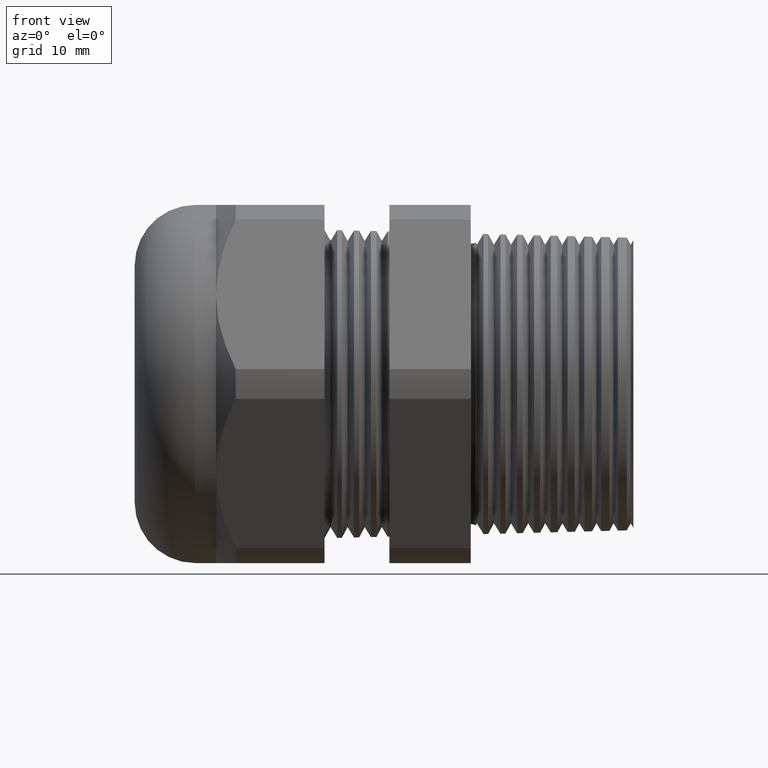
[diagram: clean part render]
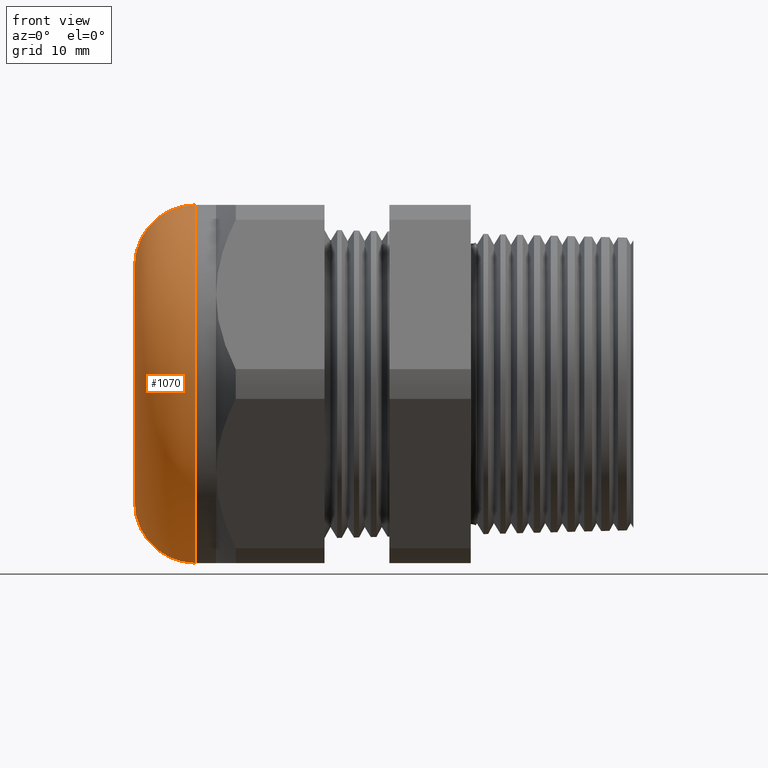
[diagram: same view with one face highlighted and labeled with its STEP entity id]
A machine part, front view. The second image highlights one B-rep face of the part: STEP entity #1070.
In plain terms, the highlighted toroidal blend (fillet) surface has major radius 10.922 mm and minor (blend) radius 5.588 mm.
Its self-contained STEP definition (entity closure, byte-faithful):
#359 = VERTEX_POINT ( 'NONE', #1964 ) ;
#1050 = ORIENTED_EDGE ( 'NONE', *, *, #1175, .F. ) ;
#1051 = ORIENTED_EDGE ( 'NONE', *, *, #3791, .T. ) ;
#1052 = ORIENTED_EDGE ( 'NONE', *, *, #1167, .F. ) ;
#1070 = ADVANCED_FACE ( 'NONE', ( #2955 ), #2954, .T. ) ;
#1071 = EDGE_LOOP ( 'NONE', ( #1072, #1050, #1051, #1052 ) ) ;
#1072 = ORIENTED_EDGE ( 'NONE', *, *, #3796, .F. ) ;
#1167 = EDGE_CURVE ( 'NONE', #3798, #3793, #3067, .T. ) ;
#1175 = EDGE_CURVE ( 'NONE', #3799, #359, #3060, .T. ) ;
#1964 = CARTESIAN_POINT ( 'NONE',  ( -1.310000000000000100, 0.0000000000000000000, -0.6500000000000001300 ) ) ;
#2951 = DIRECTION ( 'NONE',  ( 0.0000000000000000000, 0.0000000000000000000, 1.000000000000000000 ) ) ;
#2952 = DIRECTION ( 'NONE',  ( -1.000000000000000000, 0.0000000000000000000, 0.0000000000000000000 ) ) ;
#2953 = AXIS2_PLACEMENT_3D ( 'NONE', #2958, #2952, #2951 ) ;
#2954 = TOROIDAL_SURFACE ( 'NONE', #2953, 0.4300000000000002200, 0.2200000000000000000 ) ;
#2955 = FACE_OUTER_BOUND ( 'NONE', #1071, .T. ) ;
#2958 = CARTESIAN_POINT ( 'NONE',  ( -1.310000000000000100, 0.0000000000000000000, 0.0000000000000000000 ) ) ;
#3060 = CIRCLE ( 'NONE', #3120, 0.6500000000000001300 ) ;
#3061 = CARTESIAN_POINT ( 'NONE',  ( -1.310000000000000100, 0.0000000000000000000, 0.0000000000000000000 ) ) ;
#3064 = DIRECTION ( 'NONE',  ( 0.0000000000000000000, 0.0000000000000000000, 1.000000000000000000 ) ) ;
#3065 = DIRECTION ( 'NONE',  ( -1.000000000000000000, 0.0000000000000000000, 0.0000000000000000000 ) ) ;
#3066 = AXIS2_PLACEMENT_3D ( 'NONE', #3072, #3065, #3064 ) ;
#3067 = CIRCLE ( 'NONE', #3066, 0.4300000000000002200 ) ;
#3072 = CARTESIAN_POINT ( 'NONE',  ( -1.530000000000000000, 0.0000000000000000000, 0.0000000000000000000 ) ) ;
#3118 = DIRECTION ( 'NONE',  ( 0.0000000000000000000, 0.0000000000000000000, 1.000000000000000000 ) ) ;
#3119 = DIRECTION ( 'NONE',  ( 1.000000000000000000, 0.0000000000000000000, 0.0000000000000000000 ) ) ;
#3120 = AXIS2_PLACEMENT_3D ( 'NONE', #3061, #3119, #3118 ) ;
#3467 = CIRCLE ( 'NONE', #3529, 0.2200000000000000000 ) ;
#3513 = CARTESIAN_POINT ( 'NONE',  ( -1.310000000000000100, 7.960204194457797900E-017, 0.6500000000000001300 ) ) ;
#3514 = CARTESIAN_POINT ( 'NONE',  ( -1.530000000000000000, 6.613092715395709900E-017, -0.4300000000000002200 ) ) ;
#3515 = DIRECTION ( 'NONE',  ( 0.0000000000000000000, -1.224646799147353200E-016, 1.000000000000000000 ) ) ;
#3516 = DIRECTION ( 'NONE',  ( 0.0000000000000000000, 1.000000000000000000, 1.224646799147353200E-016 ) ) ;
#3517 = CARTESIAN_POINT ( 'NONE',  ( -1.310000000000000100, 5.265981236333621300E-017, -0.4300000000000002200 ) ) ;
#3518 = AXIS2_PLACEMENT_3D ( 'NONE', #3517, #3516, #3515 ) ;
#3519 = CIRCLE ( 'NONE', #3518, 0.2200000000000000000 ) ;
#3525 = CARTESIAN_POINT ( 'NONE',  ( -1.530000000000000000, 0.0000000000000000000, 0.4300000000000002200 ) ) ;
#3526 = DIRECTION ( 'NONE',  ( 0.0000000000000000000, 0.0000000000000000000, -1.000000000000000000 ) ) ;
#3527 = DIRECTION ( 'NONE',  ( 0.0000000000000000000, -1.000000000000000000, 0.0000000000000000000 ) ) ;
#3528 = CARTESIAN_POINT ( 'NONE',  ( -1.310000000000000100, 0.0000000000000000000, 0.4300000000000002200 ) ) ;
#3529 = AXIS2_PLACEMENT_3D ( 'NONE', #3528, #3527, #3526 ) ;
#3791 = EDGE_CURVE ( 'NONE', #3799, #3793, #3467, .T. ) ;
#3793 = VERTEX_POINT ( 'NONE', #3525 ) ;
#3796 = EDGE_CURVE ( 'NONE', #359, #3798, #3519, .T. ) ;
#3798 = VERTEX_POINT ( 'NONE', #3514 ) ;
#3799 = VERTEX_POINT ( 'NONE', #3513 ) ;